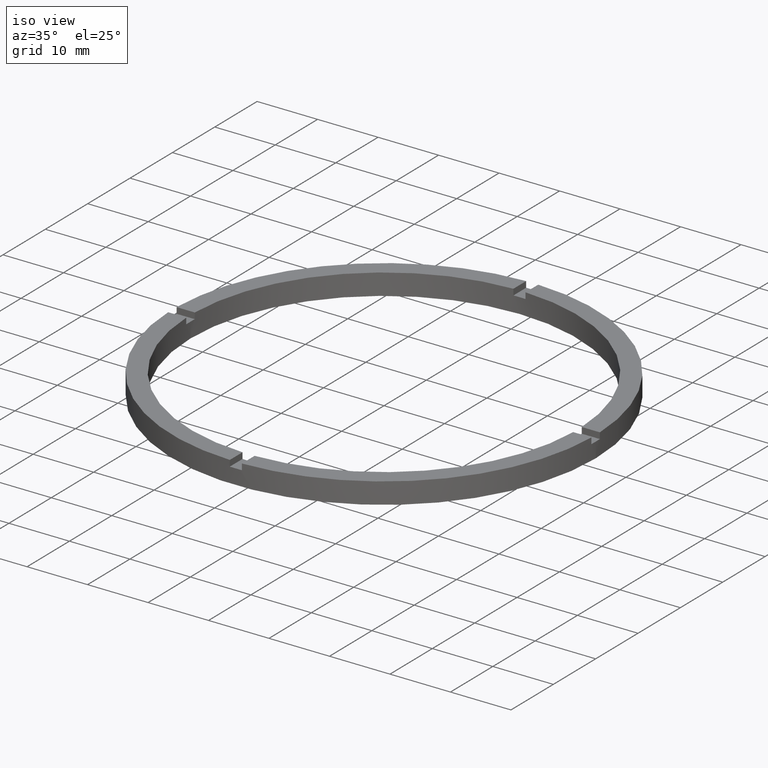
[diagram: clean part render]
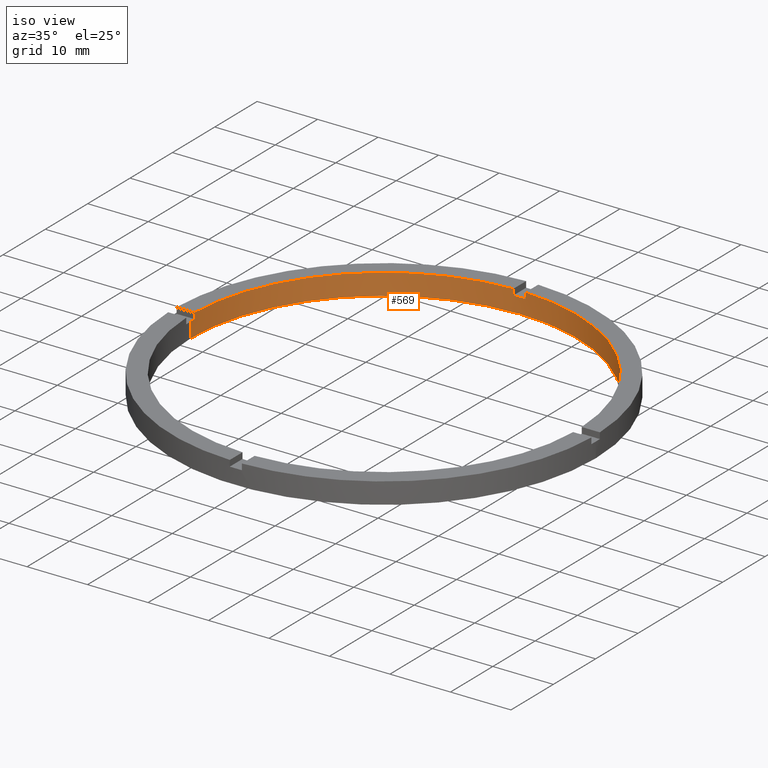
[diagram: same view with one face highlighted and labeled with its STEP entity id]
A machine part, iso view. The second image highlights one B-rep face of the part: STEP entity #569.
In plain terms, the highlighted cylindrical surface (partial cylindrical patch) has radius 32 mm, axis along (-0, -0, -1).
Its self-contained STEP definition (entity closure, byte-faithful):
#4 = ORIENTED_EDGE ( 'NONE', *, *, #701, .T. ) ;
#6 = LINE ( 'NONE', #776, #533 ) ;
#14 = LINE ( 'NONE', #297, #308 ) ;
#21 = DIRECTION ( 'NONE',  ( 1.000000000000000000, 0.000000000000000000, 0.000000000000000000 ) ) ;
#32 = AXIS2_PLACEMENT_3D ( 'NONE', #642, #211, #220 ) ;
#37 = CARTESIAN_POINT ( 'NONE',  ( -31.98437118343894880, 0.9999999999999737987, 2.500000000000000000 ) ) ;
#40 = DIRECTION ( 'NONE',  ( 0.000000000000000000, 0.000000000000000000, 1.000000000000000000 ) ) ;
#47 = AXIS2_PLACEMENT_3D ( 'NONE', #420, #564, #21 ) ;
#48 = DIRECTION ( 'NONE',  ( 0.000000000000000000, 0.000000000000000000, 1.000000000000000000 ) ) ;
#56 = DIRECTION ( 'NONE',  ( 0.000000000000000000, -0.000000000000000000, 1.000000000000000000 ) ) ;
#65 = EDGE_CURVE ( 'NONE', #453, #95, #700, .T. ) ;
#85 = VERTEX_POINT ( 'NONE', #276 ) ;
#89 = VERTEX_POINT ( 'NONE', #519 ) ;
#95 = VERTEX_POINT ( 'NONE', #284 ) ;
#99 = EDGE_CURVE ( 'NONE', #147, #139, #169, .T. ) ;
#101 = CARTESIAN_POINT ( 'NONE',  ( 32.00000000000000000, 3.918869757271530263E-15, 0.000000000000000000 ) ) ;
#106 = CARTESIAN_POINT ( 'NONE',  ( 32.00000000000000000, 3.918869757271530263E-15, 2.500000000000000000 ) ) ;
#108 = VERTEX_POINT ( 'NONE', #37 ) ;
#121 = LINE ( 'NONE', #691, #387 ) ;
#139 = VERTEX_POINT ( 'NONE', #101 ) ;
#141 = VERTEX_POINT ( 'NONE', #777 ) ;
#147 = VERTEX_POINT ( 'NONE', #106 ) ;
#150 = ORIENTED_EDGE ( 'NONE', *, *, #756, .T. ) ;
#152 = EDGE_LOOP ( 'NONE', ( #280, #150, #364, #640, #618, #427, #421, #648, #682, #360, #4, #400 ) ) ;
#169 = LINE ( 'NONE', #327, #196 ) ;
#180 = CIRCLE ( 'NONE', #253, 32.00000000000000000 ) ;
#181 = CARTESIAN_POINT ( 'NONE',  ( -32.00000000000000000, 0.000000000000000000, 0.000000000000000000 ) ) ;
#194 = CYLINDRICAL_SURFACE ( 'NONE', #639, 32.00000000000000000 ) ;
#196 = VECTOR ( 'NONE', #579, 1000.000000000000000 ) ;
#204 = CIRCLE ( 'NONE', #565, 32.00000000000000000 ) ;
#209 = FACE_OUTER_BOUND ( 'NONE', #152, .T. ) ;
#211 = DIRECTION ( 'NONE',  ( 0.000000000000000000, 0.000000000000000000, 1.000000000000000000 ) ) ;
#220 = DIRECTION ( 'NONE',  ( 1.000000000000000000, 0.000000000000000000, 0.000000000000000000 ) ) ;
#230 = CARTESIAN_POINT ( 'NONE',  ( 0.000000000000000000, 0.000000000000000000, 3.500000000000000000 ) ) ;
#231 = DIRECTION ( 'NONE',  ( 1.000000000000000000, 0.000000000000000000, 0.000000000000000000 ) ) ;
#238 = VECTOR ( 'NONE', #48, 1000.000000000000000 ) ;
#239 = DIRECTION ( 'NONE',  ( 0.000000000000000000, 0.000000000000000000, 1.000000000000000000 ) ) ;
#252 = DIRECTION ( 'NONE',  ( 0.000000000000000000, 0.000000000000000000, 1.000000000000000000 ) ) ;
#253 = AXIS2_PLACEMENT_3D ( 'NONE', #311, #352, #412 ) ;
#269 = EDGE_CURVE ( 'NONE', #141, #449, #502, .T. ) ;
#276 = CARTESIAN_POINT ( 'NONE',  ( -1.000000000000024869, 31.98437118343894880, 2.500000000000000000 ) ) ;
#280 = ORIENTED_EDGE ( 'NONE', *, *, #99, .F. ) ;
#284 = CARTESIAN_POINT ( 'NONE',  ( -31.98437118343894880, 0.9999999999999737987, 3.500000000000000000 ) ) ;
#297 = CARTESIAN_POINT ( 'NONE',  ( 31.98437118343895591, 0.9999999999998421263, 3.500000000000000000 ) ) ;
#308 = VECTOR ( 'NONE', #530, 1000.000000000000000 ) ;
#311 = CARTESIAN_POINT ( 'NONE',  ( 0.000000000000000000, 0.000000000000000000, 2.500000000000000000 ) ) ;
#312 = EDGE_CURVE ( 'NONE', #453, #85, #121, .T. ) ;
#327 = CARTESIAN_POINT ( 'NONE',  ( 32.00000000000000000, 3.918869757271530263E-15, 3.500000000000000000 ) ) ;
#333 = CARTESIAN_POINT ( 'NONE',  ( 0.9999999999999751310, 31.98437118343894880, 3.500000000000000000 ) ) ;
#352 = DIRECTION ( 'NONE',  ( 0.000000000000000000, 0.000000000000000000, 1.000000000000000000 ) ) ;
#360 = ORIENTED_EDGE ( 'NONE', *, *, #770, .T. ) ;
#364 = ORIENTED_EDGE ( 'NONE', *, *, #562, .F. ) ;
#380 = DIRECTION ( 'NONE',  ( -0.000000000000000000, -0.000000000000000000, -1.000000000000000000 ) ) ;
#387 = VECTOR ( 'NONE', #527, 1000.000000000000000 ) ;
#400 = ORIENTED_EDGE ( 'NONE', *, *, #587, .F. ) ;
#412 = DIRECTION ( 'NONE',  ( 1.000000000000000000, 0.000000000000000000, 0.000000000000000000 ) ) ;
#415 = EDGE_CURVE ( 'NONE', #715, #449, #555, .T. ) ;
#420 = CARTESIAN_POINT ( 'NONE',  ( 0.000000000000000000, 0.000000000000000000, 2.500000000000000000 ) ) ;
#421 = ORIENTED_EDGE ( 'NONE', *, *, #312, .F. ) ;
#427 = ORIENTED_EDGE ( 'NONE', *, *, #663, .T. ) ;
#431 = DIRECTION ( 'NONE',  ( 1.000000000000000000, 0.000000000000000000, 0.000000000000000000 ) ) ;
#449 = VERTEX_POINT ( 'NONE', #636 ) ;
#453 = VERTEX_POINT ( 'NONE', #716 ) ;
#462 = CIRCLE ( 'NONE', #561, 32.00000000000000000 ) ;
#473 = CIRCLE ( 'NONE', #47, 32.00000000000000000 ) ;
#492 = DIRECTION ( 'NONE',  ( 1.000000000000000000, 0.000000000000000000, 0.000000000000000000 ) ) ;
#502 = LINE ( 'NONE', #333, #238 ) ;
#511 = AXIS2_PLACEMENT_3D ( 'NONE', #230, #252, #492 ) ;
#514 = CARTESIAN_POINT ( 'NONE',  ( -32.00000000000000000, 0.000000000000000000, 3.500000000000000000 ) ) ;
#519 = CARTESIAN_POINT ( 'NONE',  ( -32.00000000000000000, 0.000000000000000000, 2.500000000000000000 ) ) ;
#525 = EDGE_CURVE ( 'NONE', #108, #95, #6, .T. ) ;
#527 = DIRECTION ( 'NONE',  ( -0.000000000000000000, -0.000000000000000000, -1.000000000000000000 ) ) ;
#530 = DIRECTION ( 'NONE',  ( -0.000000000000000000, -0.000000000000000000, -1.000000000000000000 ) ) ;
#531 = VERTEX_POINT ( 'NONE', #732 ) ;
#533 = VECTOR ( 'NONE', #239, 1000.000000000000000 ) ;
#555 = CIRCLE ( 'NONE', #511, 32.00000000000000000 ) ;
#561 = AXIS2_PLACEMENT_3D ( 'NONE', #568, #56, #431 ) ;
#562 = EDGE_CURVE ( 'NONE', #715, #531, #14, .T. ) ;
#564 = DIRECTION ( 'NONE',  ( 0.000000000000000000, 0.000000000000000000, 1.000000000000000000 ) ) ;
#565 = AXIS2_PLACEMENT_3D ( 'NONE', #771, #40, #231 ) ;
#568 = CARTESIAN_POINT ( 'NONE',  ( 0.000000000000000000, 0.000000000000000000, 2.500000000000000000 ) ) ;
#569 = ADVANCED_FACE ( 'NONE', ( #209 ), #194, .F. ) ;
#579 = DIRECTION ( 'NONE',  ( -0.000000000000000000, -0.000000000000000000, -1.000000000000000000 ) ) ;
#587 = EDGE_CURVE ( 'NONE', #139, #671, #204, .T. ) ;
#617 = DIRECTION ( 'NONE',  ( -0.000000000000000000, -0.000000000000000000, -1.000000000000000000 ) ) ;
#618 = ORIENTED_EDGE ( 'NONE', *, *, #269, .F. ) ;
#636 = CARTESIAN_POINT ( 'NONE',  ( 0.9999999999999751310, 31.98437118343894880, 3.500000000000000000 ) ) ;
#639 = AXIS2_PLACEMENT_3D ( 'NONE', #641, #380, #693 ) ;
#640 = ORIENTED_EDGE ( 'NONE', *, *, #415, .T. ) ;
#641 = CARTESIAN_POINT ( 'NONE',  ( 0.000000000000000000, 0.000000000000000000, 3.500000000000000000 ) ) ;
#642 = CARTESIAN_POINT ( 'NONE',  ( 0.000000000000000000, 0.000000000000000000, 3.500000000000000000 ) ) ;
#648 = ORIENTED_EDGE ( 'NONE', *, *, #65, .T. ) ;
#663 = EDGE_CURVE ( 'NONE', #141, #85, #462, .T. ) ;
#670 = CARTESIAN_POINT ( 'NONE',  ( 31.98437118343895591, 0.9999999999998421263, 3.500000000000000000 ) ) ;
#671 = VERTEX_POINT ( 'NONE', #181 ) ;
#682 = ORIENTED_EDGE ( 'NONE', *, *, #525, .F. ) ;
#691 = CARTESIAN_POINT ( 'NONE',  ( -1.000000000000024869, 31.98437118343894880, 3.500000000000000000 ) ) ;
#693 = DIRECTION ( 'NONE',  ( -1.000000000000000000, 0.000000000000000000, 0.000000000000000000 ) ) ;
#700 = CIRCLE ( 'NONE', #32, 32.00000000000000000 ) ;
#701 = EDGE_CURVE ( 'NONE', #89, #671, #710, .T. ) ;
#710 = LINE ( 'NONE', #514, #726 ) ;
#715 = VERTEX_POINT ( 'NONE', #670 ) ;
#716 = CARTESIAN_POINT ( 'NONE',  ( -1.000000000000024869, 31.98437118343894880, 3.500000000000000000 ) ) ;
#726 = VECTOR ( 'NONE', #617, 1000.000000000000000 ) ;
#732 = CARTESIAN_POINT ( 'NONE',  ( 31.98437118343895591, 0.9999999999998421263, 2.500000000000000000 ) ) ;
#756 = EDGE_CURVE ( 'NONE', #147, #531, #180, .T. ) ;
#770 = EDGE_CURVE ( 'NONE', #108, #89, #473, .T. ) ;
#771 = CARTESIAN_POINT ( 'NONE',  ( 0.000000000000000000, 0.000000000000000000, 0.000000000000000000 ) ) ;
#776 = CARTESIAN_POINT ( 'NONE',  ( -31.98437118343894880, 0.9999999999999737987, 3.500000000000000000 ) ) ;
#777 = CARTESIAN_POINT ( 'NONE',  ( 0.9999999999999751310, 31.98437118343894880, 2.500000000000000000 ) ) ;